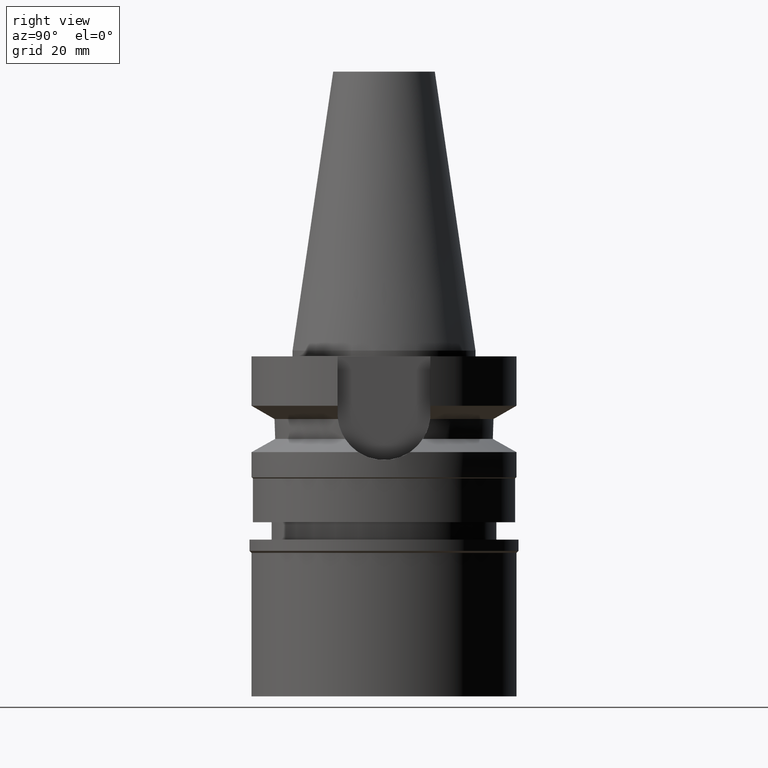
[diagram: clean part render]
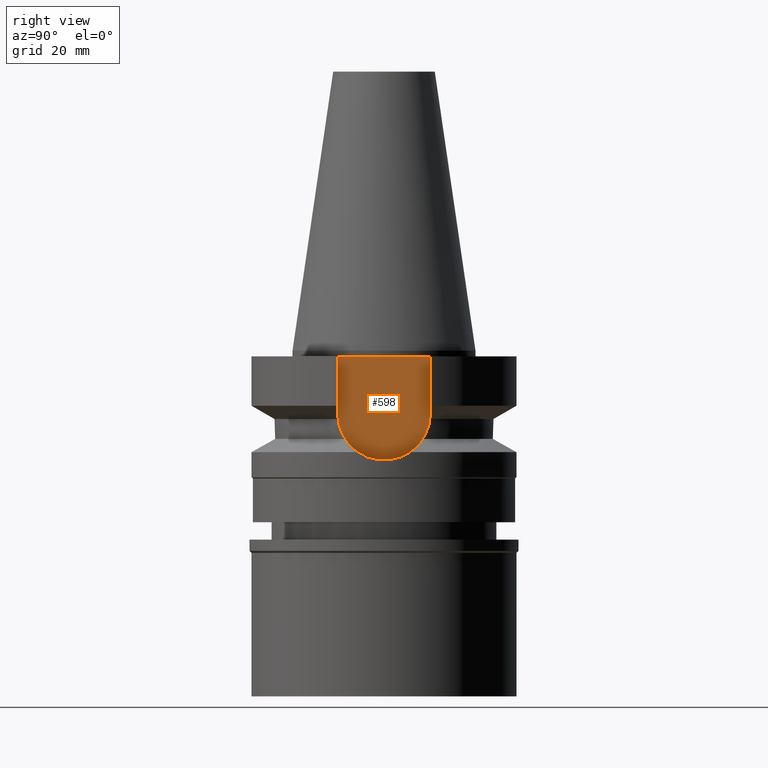
[diagram: same view with one face highlighted and labeled with its STEP entity id]
A machine part, right view. The second image highlights one B-rep face of the part: STEP entity #598.
In plain terms, the highlighted planar face has unit normal (1, 0, 0).
Its self-contained STEP definition (entity closure, byte-faithful):
#194 = FACE_OUTER_BOUND ( 'NONE', #461, .T. ) ;
#401 = CARTESIAN_POINT ( 'NONE',  ( 16.29999999999999716, 8.050000000000000711, -1.000000000000000000 ) ) ;
#417 = VERTEX_POINT ( 'NONE', #2489 ) ;
#428 = VERTEX_POINT ( 'NONE', #401 ) ;
#461 = EDGE_LOOP ( 'NONE', ( #2339, #1416, #1980, #2274 ) ) ;
#598 = ADVANCED_FACE ( 'NONE', ( #194 ), #648, .T. ) ;
#648 = PLANE ( 'NONE',  #1273 ) ;
#792 = CARTESIAN_POINT ( 'NONE',  ( 16.29999999999999716, 8.050000000000000711, -1.000000000000000000 ) ) ;
#843 = AXIS2_PLACEMENT_3D ( 'NONE', #2902, #1726, #1959 ) ;
#937 = VECTOR ( 'NONE', #1723, 1000.000000000000000 ) ;
#984 = VECTOR ( 'NONE', #1718, 1000.000000000000000 ) ;
#996 = LINE ( 'NONE', #792, #937 ) ;
#1028 = DIRECTION ( 'NONE',  ( 1.000000000000000000, 0.0000000000000000000, 0.0000000000000000000 ) ) ;
#1089 = CARTESIAN_POINT ( 'NONE',  ( 16.29999999999999716, 8.050000000000000711, -1.000000000000000000 ) ) ;
#1195 = EDGE_CURVE ( 'NONE', #428, #1637, #996, .T. ) ;
#1273 = AXIS2_PLACEMENT_3D ( 'NONE', #2680, #1028, #1505 ) ;
#1416 = ORIENTED_EDGE ( 'NONE', *, *, #1827, .F. ) ;
#1505 = DIRECTION ( 'NONE',  ( 0.0000000000000000000, 1.000000000000000000, 0.0000000000000000000 ) ) ;
#1583 = EDGE_CURVE ( 'NONE', #428, #1783, #2008, .T. ) ;
#1637 = VERTEX_POINT ( 'NONE', #2931 ) ;
#1718 = DIRECTION ( 'NONE',  ( 0.0000000000000000000, -1.000000000000000000, 0.0000000000000000000 ) ) ;
#1723 = DIRECTION ( 'NONE',  ( 0.0000000000000000000, 0.0000000000000000000, -1.000000000000000000 ) ) ;
#1726 = DIRECTION ( 'NONE',  ( -1.000000000000000000, 0.0000000000000000000, 0.0000000000000000000 ) ) ;
#1783 = VERTEX_POINT ( 'NONE', #2479 ) ;
#1817 = VECTOR ( 'NONE', #1838, 1000.000000000000000 ) ;
#1825 = CARTESIAN_POINT ( 'NONE',  ( 16.29999999999999716, -8.050000000000000711, -10.94999999999999929 ) ) ;
#1827 = EDGE_CURVE ( 'NONE', #1637, #417, #2662, .T. ) ;
#1838 = DIRECTION ( 'NONE',  ( 0.0000000000000000000, 0.0000000000000000000, 1.000000000000000000 ) ) ;
#1908 = EDGE_CURVE ( 'NONE', #417, #1783, #2754, .T. ) ;
#1959 = DIRECTION ( 'NONE',  ( 0.0000000000000000000, 0.0000000000000000000, -1.000000000000000000 ) ) ;
#1980 = ORIENTED_EDGE ( 'NONE', *, *, #1195, .F. ) ;
#2008 = LINE ( 'NONE', #1089, #984 ) ;
#2274 = ORIENTED_EDGE ( 'NONE', *, *, #1583, .T. ) ;
#2339 = ORIENTED_EDGE ( 'NONE', *, *, #1908, .F. ) ;
#2479 = CARTESIAN_POINT ( 'NONE',  ( 16.29999999999999716, -8.050000000000000711, -1.000000000000000000 ) ) ;
#2489 = CARTESIAN_POINT ( 'NONE',  ( 16.29999999999999716, -8.050000000000000711, -10.94999999999999929 ) ) ;
#2662 = CIRCLE ( 'NONE', #843, 8.050000000000000711 ) ;
#2680 = CARTESIAN_POINT ( 'NONE',  ( 16.29999999999999716, 0.0000000000000000000, 0.0000000000000000000 ) ) ;
#2754 = LINE ( 'NONE', #1825, #1817 ) ;
#2902 = CARTESIAN_POINT ( 'NONE',  ( 16.29999999999999716, 0.0000000000000000000, -10.94999999999999929 ) ) ;
#2931 = CARTESIAN_POINT ( 'NONE',  ( 16.29999999999999716, 8.050000000000000711, -10.94999999999999929 ) ) ;